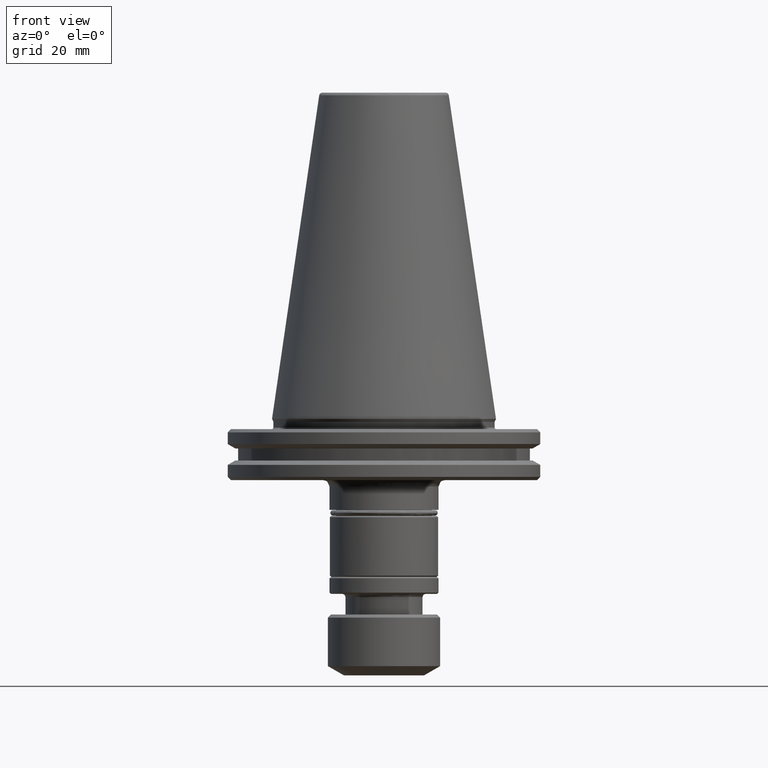
[diagram: clean part render]
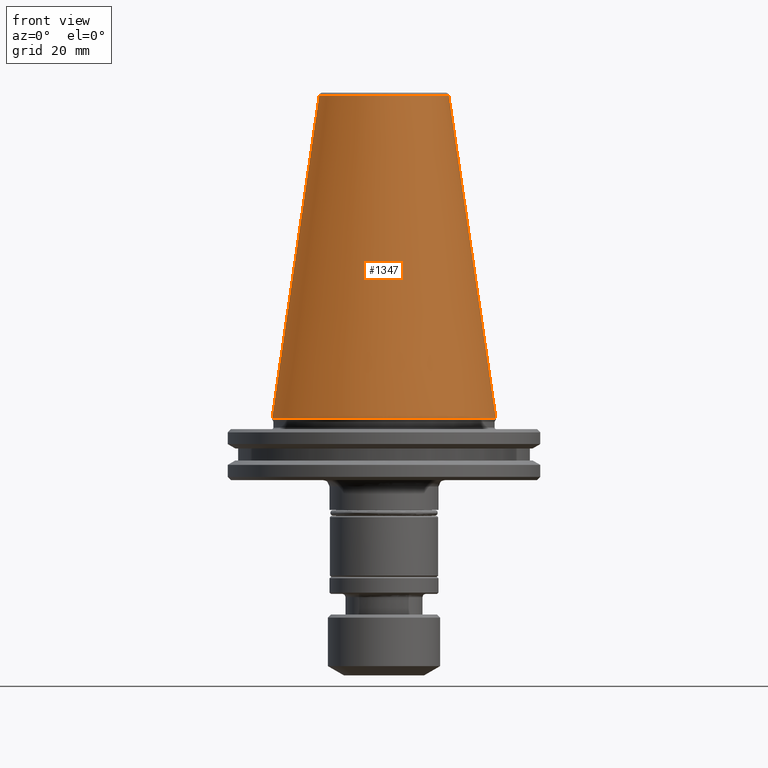
[diagram: same view with one face highlighted and labeled with its STEP entity id]
A machine part, front view. The second image highlights one B-rep face of the part: STEP entity #1347.
In plain terms, the highlighted conical surface has half-angle 8.297 deg.
Its self-contained STEP definition (entity closure, byte-faithful):
#73 = CARTESIAN_POINT ( 'NONE',  ( -34.92499999999999700, 0.0000000000000000000, -1.387778780781445700E-014 ) ) ;
#311 = VERTEX_POINT ( 'NONE', #2354 ) ;
#382 = CIRCLE ( 'NONE', #1933, 20.21110778703758000 ) ;
#385 = VERTEX_POINT ( 'NONE', #2348 ) ;
#477 = AXIS2_PLACEMENT_3D ( 'NONE', #1173, #1184, #1171 ) ;
#861 = VECTOR ( 'NONE', #1423, 1000.000000000000000 ) ;
#889 = CIRCLE ( 'NONE', #2044, 34.92499999999999700 ) ;
#1002 = LINE ( 'NONE', #1329, #2002 ) ;
#1115 = EDGE_LOOP ( 'NONE', ( #2195, #1191, #2496, #2369 ) ) ;
#1171 = DIRECTION ( 'NONE',  ( -1.000000000000000000, 0.0000000000000000000, 0.0000000000000000000 ) ) ;
#1172 = CARTESIAN_POINT ( 'NONE',  ( -20.21110778703758000, 0.0000000000000000000, 100.8943082272673000 ) ) ;
#1173 = CARTESIAN_POINT ( 'NONE',  ( 0.0000000000000000000, 0.0000000000000000000, -1.387778780781445700E-014 ) ) ;
#1184 = DIRECTION ( 'NONE',  ( 0.0000000000000000000, 0.0000000000000000000, -1.000000000000000000 ) ) ;
#1191 = ORIENTED_EDGE ( 'NONE', *, *, #2037, .T. ) ;
#1329 = CARTESIAN_POINT ( 'NONE',  ( 34.92499999999999700, 4.277078946022130900E-015, -1.387778780781445700E-014 ) ) ;
#1347 = ADVANCED_FACE ( 'NONE', ( #1424 ), #1608, .T. ) ;
#1423 = DIRECTION ( 'NONE',  ( -0.1443082272673069400, 0.0000000000000000000, -0.9895327864921743500 ) ) ;
#1424 = FACE_OUTER_BOUND ( 'NONE', #1115, .T. ) ;
#1518 = DIRECTION ( 'NONE',  ( 0.1443082272673069400, 1.767266086135362400E-017, -0.9895327864921743500 ) ) ;
#1608 = CONICAL_SURFACE ( 'NONE', #477, 34.92499999999999700, 0.1448138465474189400 ) ;
#1712 = DIRECTION ( 'NONE',  ( -0.0000000000000000000, -0.0000000000000000000, 1.000000000000000000 ) ) ;
#1933 = AXIS2_PLACEMENT_3D ( 'NONE', #2392, #2382, #2359 ) ;
#2002 = VECTOR ( 'NONE', #1518, 1000.000000000000000 ) ;
#2022 = EDGE_CURVE ( 'NONE', #311, #385, #889, .T. ) ;
#2037 = EDGE_CURVE ( 'NONE', #2393, #2127, #382, .T. ) ;
#2044 = AXIS2_PLACEMENT_3D ( 'NONE', #2204, #1712, #2525 ) ;
#2127 = VERTEX_POINT ( 'NONE', #1172 ) ;
#2195 = ORIENTED_EDGE ( 'NONE', *, *, #2445, .F. ) ;
#2204 = CARTESIAN_POINT ( 'NONE',  ( 0.0000000000000000000, 0.0000000000000000000, 0.0000000000000000000 ) ) ;
#2348 = CARTESIAN_POINT ( 'NONE',  ( 34.92499999999999700, 4.277078946022130900E-015, 0.0000000000000000000 ) ) ;
#2354 = CARTESIAN_POINT ( 'NONE',  ( -34.92499999999999700, 0.0000000000000000000, 0.0000000000000000000 ) ) ;
#2359 = DIRECTION ( 'NONE',  ( -1.000000000000000000, 0.0000000000000000000, 0.0000000000000000000 ) ) ;
#2365 = LINE ( 'NONE', #73, #861 ) ;
#2369 = ORIENTED_EDGE ( 'NONE', *, *, #2022, .T. ) ;
#2382 = DIRECTION ( 'NONE',  ( 0.0000000000000000000, 0.0000000000000000000, -1.000000000000000000 ) ) ;
#2392 = CARTESIAN_POINT ( 'NONE',  ( 0.0000000000000000000, 0.0000000000000000000, 100.8943082272673000 ) ) ;
#2393 = VERTEX_POINT ( 'NONE', #2495 ) ;
#2445 = EDGE_CURVE ( 'NONE', #2393, #385, #1002, .T. ) ;
#2477 = EDGE_CURVE ( 'NONE', #2127, #311, #2365, .T. ) ;
#2495 = CARTESIAN_POINT ( 'NONE',  ( 20.21110778703758000, 3.376112895941951000E-015, 100.8943082272673000 ) ) ;
#2496 = ORIENTED_EDGE ( 'NONE', *, *, #2477, .T. ) ;
#2525 = DIRECTION ( 'NONE',  ( -1.000000000000000000, 0.0000000000000000000, 0.0000000000000000000 ) ) ;